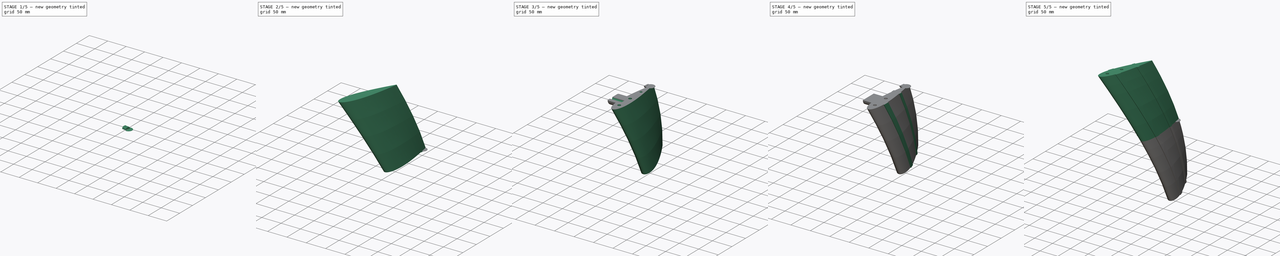
[diagram: build sequence overview — one tinted view per stage of 5, left to right]
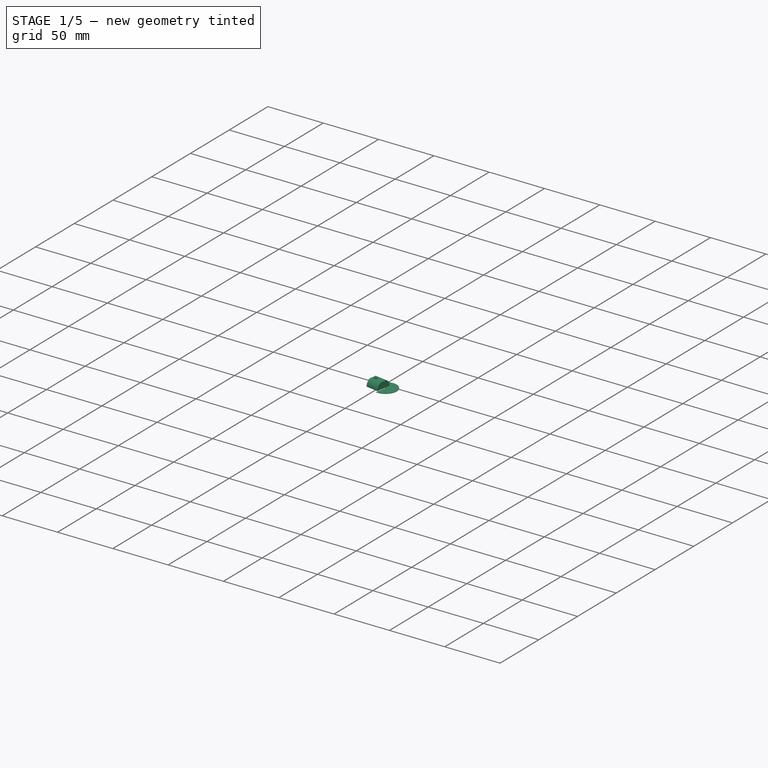
[diagram: stage 1 of 5 — iso view after this stage's code; geometry added in this stage tinted green]
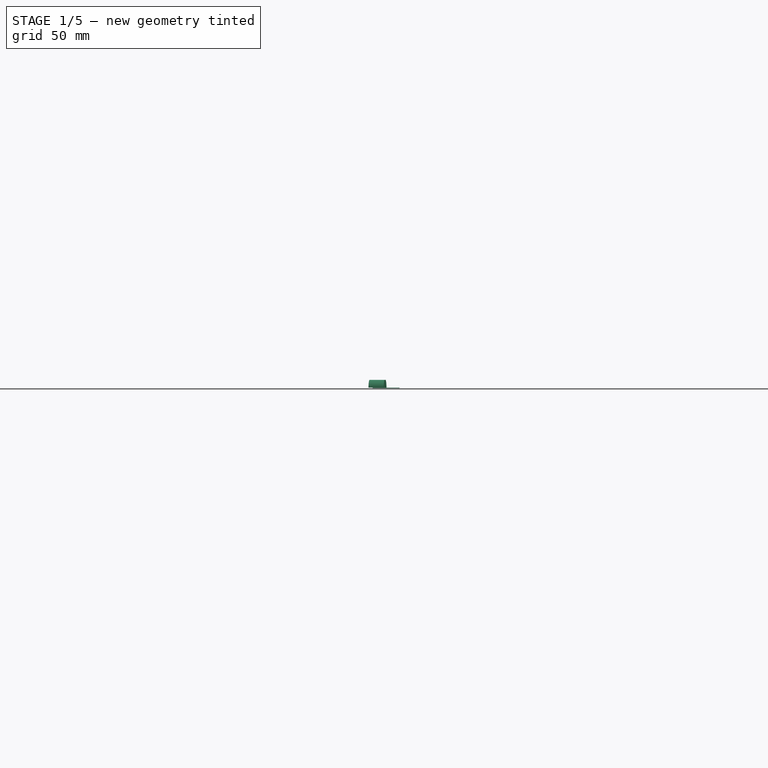
[diagram: stage 1 of 5 — front view after this stage's code; geometry added in this stage tinted green]
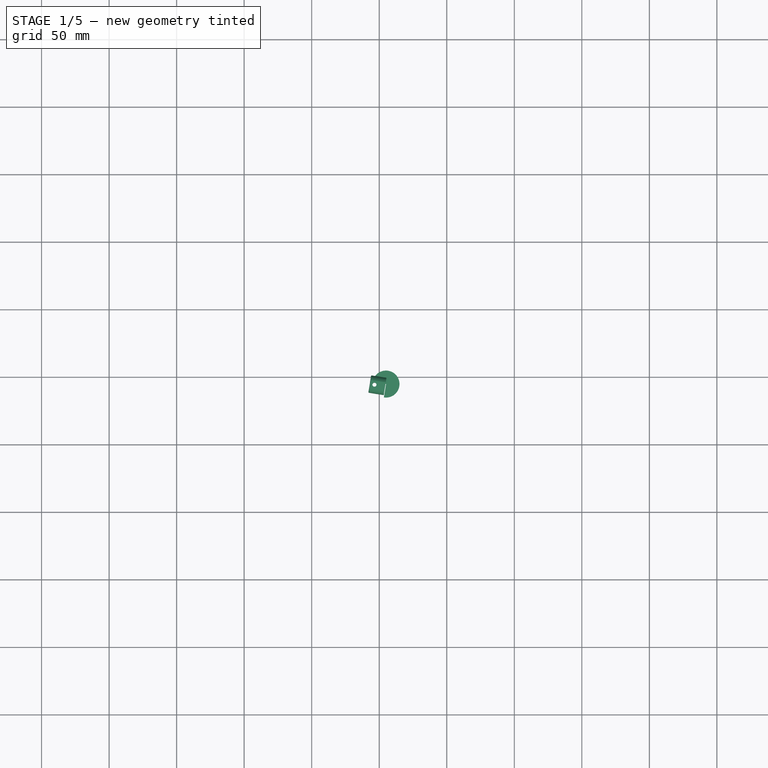
[diagram: stage 1 of 5 — top view after this stage's code; geometry added in this stage tinted green]
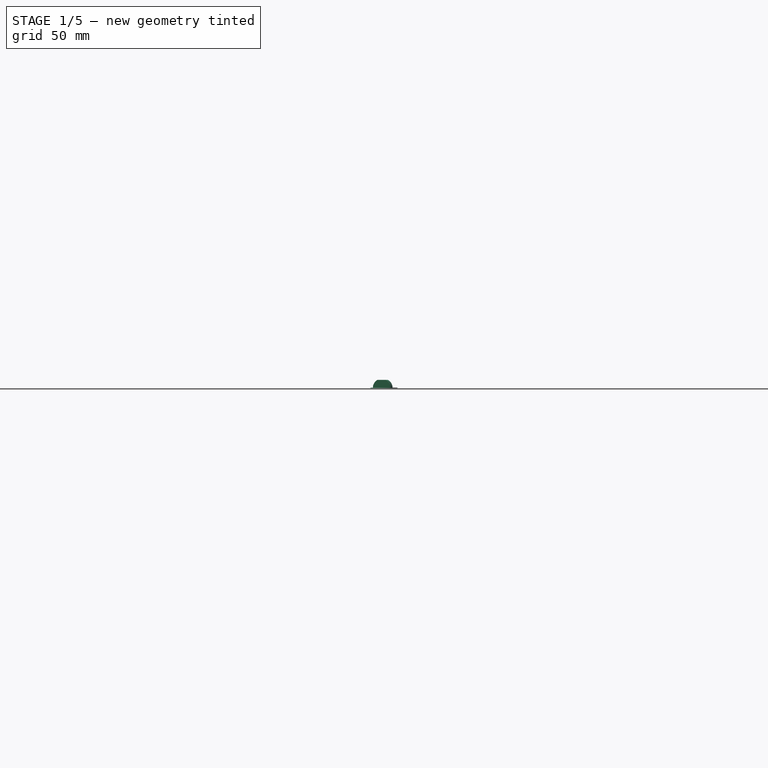
[diagram: stage 1 of 5 — right view after this stage's code; geometry added in this stage tinted green]
FCSTD DOCUMENT  (FreeCAD 0.17R13200 (Git))
Label: helixblade_mid_30
License: All rights reserved
LicenseURL: http://en.wikipedia.org/wiki/All_rights_reserved
objects: Part::FeaturePython×12, Sketcher::SketchObject×11, PartDesign::Body×9, PartDesign::Pocket×6, Part::MultiFuse×6, Part::Fillet×5, Part::Mirroring×4, PartDesign::FeatureBase×4, App::DocumentObjectGroup×3, PartDesign::Pad×3, Part::Part2DObjectPython×2, PartDesign::ShapeBinder×2, PartDesign::AdditivePipe×2, Part::Helix×1, Part::Sweep×1, App::Part×1
note: 79 computed .brp shape members not serialized (recipe doc carries the construction recipe); baked Part::Feature solids carry a one-line shape summary decoded from their .brp

FEATURE [Sketcher::SketchObject] Sketch009
  MapMode = 5
  Placement = pos=(0,0,0) rot=(0.57735,0.57735,0.57735;2.0944rad)
  Support = -> [YZ_Plane]
  sketch-geometry (4):
    g0: ArcOfCircle CenterX=0 CenterY=0 CenterZ=0 NormalX=0 NormalY=0 NormalZ=1 AngleXU=0 Radius=6.5 StartAngle=2.05052 EndAngle=3.14159
    g1: LineSegment StartX=-6.5 StartY=0 StartZ=0 EndX=6.5 EndY=0 EndZ=0
    g2: ArcOfCircle CenterX=0 CenterY=0 CenterZ=0 NormalX=0 NormalY=0 NormalZ=1 AngleXU=0 Radius=6.5 StartAngle=0 EndAngle=1.09107
    g3: LineSegment StartX=-3 StartY=5.76628 StartZ=0 EndX=3 EndY=5.76628 EndZ=0
  constraints (11):
    c: Coincident(g0,g-1)
    c: Coincident(g1,g0)
    c: Symmetric(g0,g1,g-2)
    c: Distance(g1) = 13
    c: Coincident(g2,g1)
    c: Coincident(g3,g0)
    c: Coincident(g3,g2)
    c: Horizontal(g3)
    c: Distance(g3) = 6
    c: Coincident(g2,g-1)
    c: PointOnObject(g1,g-1)
FEATURE [PartDesign::Pad] Pad001
  Length = 11.5
  Length2 = 100
  Placement = pos=(0,0,0) rot=(0.57735,0.57735,0.57735;2.0944rad)
  Profile = -> Sketch009
  Refine = true
  Type = 0
FEATURE [PartDesign::Pocket] Pocket003  label="clip w hole"
  BaseFeature = -> Pad001
  Length = 5
  Length2 = 100
  Midplane = true
  Placement = pos=(0,0,0) rot=(0.57735,0.57735,0.57735;2.0944rad)
  Profile = -> Sketch008
  Refine = true
  Type = 1
FEATURE [PartDesign::Body] Body  label="Clip"
  Group = -> [Sketch008,Sketch009,Pad001,Pocket003]
  Origin = -> BodyOrigin
  Tip = -> Pad001
FEATURE [Part::Fillet] Fillet008  label="clip"
  Base = -> Pocket003
  Edges = 3 edges r=0.6: [Edge3,Edge5,Edge13]
FEATURE [Part::FeaturePython] Clone015  label="clip001"  # Draft clone (typed FeaturePython)
  AttacherType = Attacher::AttachEngine3D
  Objects = -> [Fillet008]
  Placement = pos=(343,95,0) rot=(0,0,-1;0.15708rad)
  Scale = (1,1,1)
FEATURE [Part::FeaturePython] Clone016  label="clip002"  # Draft clone (typed FeaturePython)
  AttacherType = Attacher::AttachEngine3D
  Objects = -> [Clone015]
  Placement = pos=(343,95,0) rot=(0,0,-1;0.15708rad)
  Scale = (1,1,1)
FEATURE [PartDesign::Body] Body003  label="helixblade mirrored"
  Group = -> [Sketch011,Pocket005]
  Origin = -> Body003Origin
  Tip = -> Pocket005
FEATURE [Sketcher::SketchObject] Sketch012
  MapMode = 5
  Support = -> [XY_Plane008]
  sketch-geometry (3):
    g0: ArcOfCircle CenterX=0 CenterY=0 CenterZ=0 NormalX=0 NormalY=0 NormalZ=1 AngleXU=0 Radius=10 StartAngle=4.71239 EndAngle=9.42478
    g1: LineSegment StartX=-10 StartY=0 StartZ=0 EndX=0 EndY=0 EndZ=0
    g2: LineSegment StartX=0 StartY=0 StartZ=0 EndX=0 EndY=-10 EndZ=0
  constraints (8):
    c: Coincident(g0,g-1)
    c: Radius(g0) = 10
    c: Coincident(g1,g0)
    c: Coincident(g1,g-1)
    c: Horizontal(g1)
    c: Coincident(g2,g-1)
    c: Coincident(g2,g0)
    c: Vertical(g2)
FEATURE [PartDesign::Pad] Pad002  label="brim001"
  Length = 0.4
  Length2 = 100
  Profile = -> Sketch012
  Refine = true
  Type = 0
FEATURE [PartDesign::Body] Body004  label="brim"
  Group = -> [Sketch012,Pad002]
  Origin = -> Body004Origin
  Tip = -> Pad002
FEATURE [Part::FeaturePython] Clone017  label="brim002"  # Draft clone (typed FeaturePython)
  AttacherType = Attacher::AttachEngine3D
  Objects = -> [Body004]
  Placement = pos=(355,95,0) rot=(0,0,-1;0.15708rad)
  Scale = (1,1,1)
FEATURE [Part::FeaturePython] Clone018  label="brim003"  # Draft clone (typed FeaturePython)
  AttacherType = Attacher::AttachEngine3D
  Objects = -> [Clone017]
  Placement = pos=(355,95,-0.399) rot=(0,0,-1;0.15708rad)
  Scale = (1,1,1)
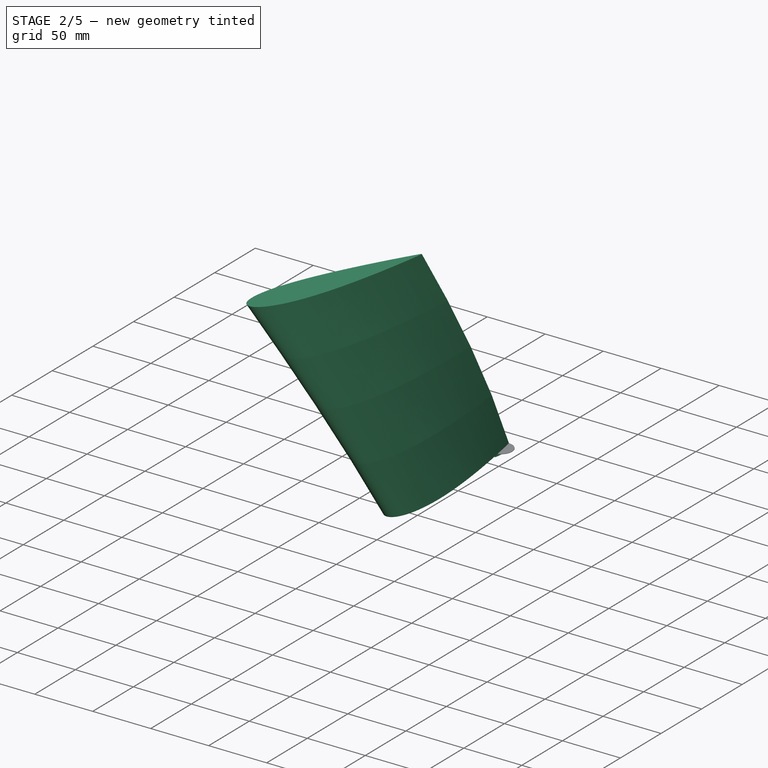
[diagram: stage 2 of 5 — iso view after this stage's code; geometry added in this stage tinted green]
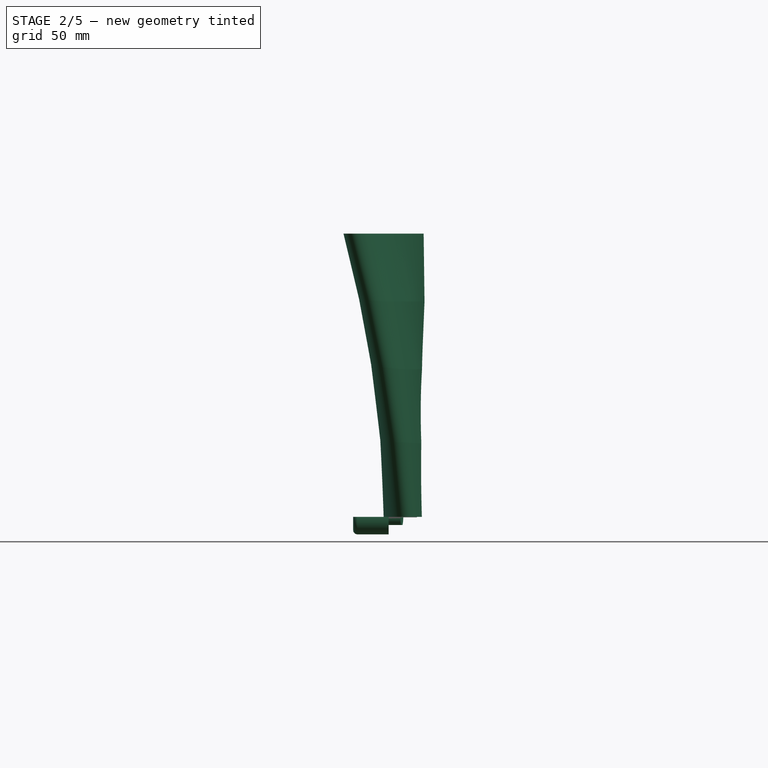
[diagram: stage 2 of 5 — front view after this stage's code; geometry added in this stage tinted green]
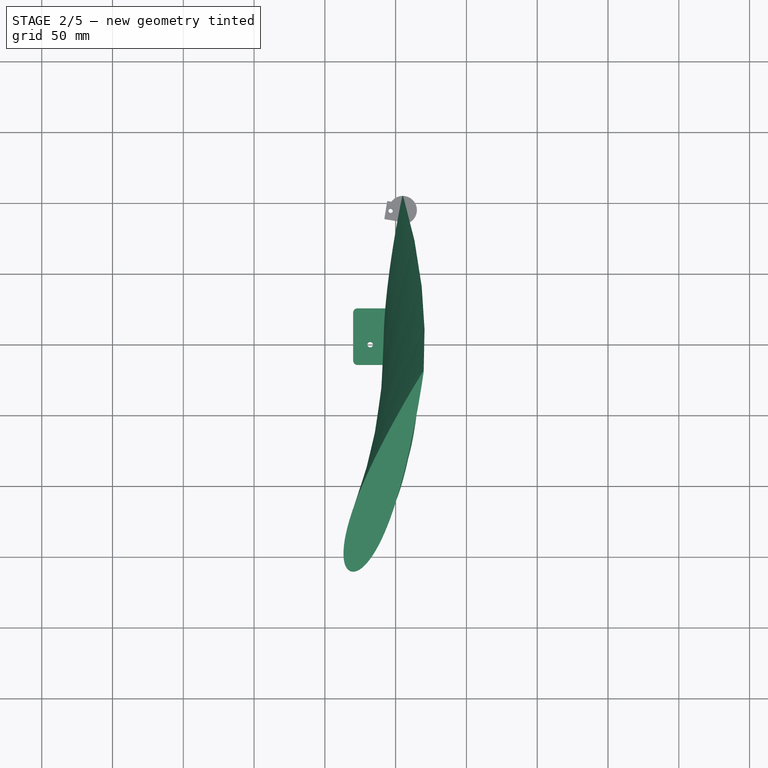
[diagram: stage 2 of 5 — top view after this stage's code; geometry added in this stage tinted green]
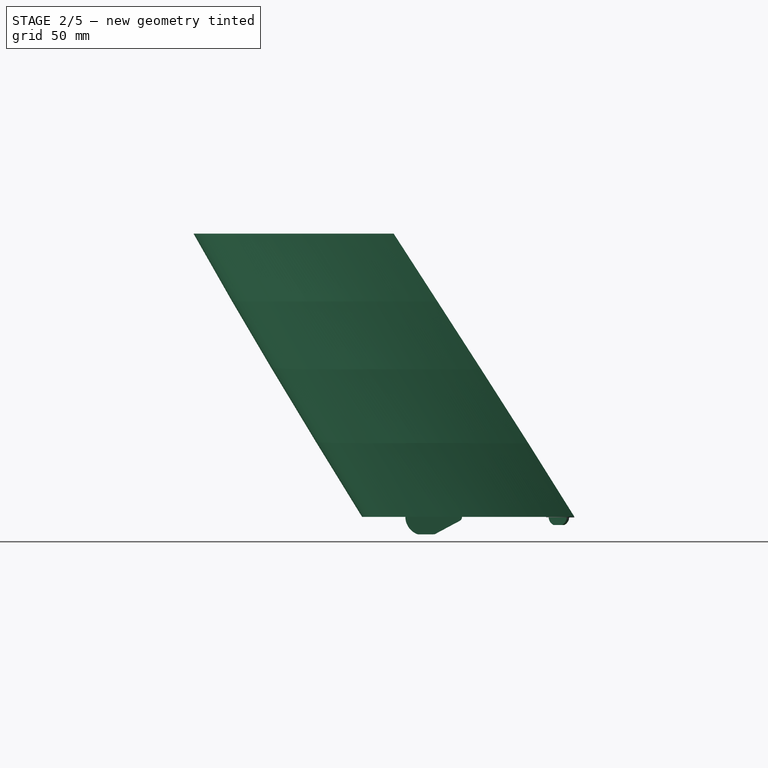
[diagram: stage 2 of 5 — right view after this stage's code; geometry added in this stage tinted green]
FEATURE [App::DocumentObjectGroup] naca0015
FEATURE [Part::Part2DObjectPython] DWire  # Draft 2D object (typed FeaturePython)
  ChamferSize = 0
  Closed = true
  End = (1,-0.001575,0)
  FilletRadius = 0
  Length = 2.05967
  MakeFace = true
  Points = (201) [(1,0.001575,0),(0.999753,0.001618,0),(0.999013,0.001748,0),(0.997781,0.001964,0),(0.996057,0.002265,0),(0.993844,0.002651,0),(0.991144,0.00312,0),+194 more]
  Start = (1,0.001575,0)
  Subdivisions = 0
FEATURE [Part::Part2DObjectPython] Clone2D  label="wing bottom"  # Draft 2D object (typed FeaturePython)
  Objects = -> [DWire]
  Placement = pos=(355,-45,0) rot=(0,0,1;1.5708rad)
  Scale = (150,180,1)
FEATURE [Part::Helix] Helix
  Angle = 0
  AttacherType = Attacher::AttachEngine3D
  Height = 200
  LocalCoord = 1
  Pitch = 3600
  Radius = 355
  Style = 1
FEATURE [Part::Sweep] Sweep  label="helix blade"
  Frenet = true
  Sections = -> [Clone2D]
  Solid = true
  Spine = -> Helix [Edge1]
  Transition = 1
FEATURE [Sketcher::SketchObject] Sketch002
  MapMode = 5
  Placement = pos=(0,0,0) rot=(0.57735,0.57735,0.57735;2.0944rad)
  Support = -> [YZ_Plane002]
  sketch-geometry (6):
    g0: LineSegment StartX=-5.77171 StartY=12.3629 StartZ=0 EndX=6.22829 EndY=12.3629 EndZ=0
    g1: LineSegment StartX=6.22829 StartY=12.3629 StartZ=0 EndX=25.5742 EndY=2 EndZ=0
    g2: LineSegment StartX=25.5742 StartY=2 StartZ=0 EndX=25.5742 EndY=0 EndZ=0
    g3: LineSegment StartX=-14.4258 StartY=0 StartZ=0 EndX=25.5742 EndY=0 EndZ=0
    g4: ArcOfCircle CenterX=-1.16916 CenterY=-0.0692517 CenterZ=0 NormalX=0 NormalY=0 NormalZ=1 AngleXU=0 Radius=13.2568 StartAngle=1.92536 EndAngle=3.13637
    g5: LineSegment [constr] StartX=0.22829 StartY=-0.00700161 StartZ=0 EndX=0.22829 EndY=11.7539 EndZ=0
  constraints (18):
    c: PointOnObject(g4,g-1)
    c: Horizontal(g0)
    c: PointOnObject(g1,g0)
    c: PointOnObject(g2,g1)
    c: PointOnObject(g2,g-1)
    c: PointOnObject(g3,g-1)
    c: Vertical(g2)
    c: Coincident(g3,g2)
    c: PointOnObject(g4,g-1)
    c: Coincident(g0,g4)
    c: Coincident(g1,g0)
    c: Coincident(g1,g2)
    c: DistanceY(g2,g2) = 2
    c: DistanceX(g3,g3) = 40
    c: Vertical(g5)
    c: Symmetric(g0,g0,g5)
    c: DistanceX(g0,g0) = 12
    c: Coincident(g4,g3)
FEATURE [PartDesign::Pad] Pad  label="mount"
  Length = 25
  Length2 = 100
  Placement = pos=(0,0,0) rot=(0.57735,0.57735,0.57735;2.0944rad)
  Profile = -> Sketch002
  Refine = true
  Type = 0
FEATURE [Sketcher::SketchObject] Sketch003  label="screwhole"
  ExternalGeometry = -> [Pad]
  MapMode = 5
  Placement = pos=(0,0,12.3629) rot=(0,0,-1;1.5708rad)
  Support = -> [Pad]
  sketch-geometry (1):
    g0: Circle CenterX=0 CenterY=12 CenterZ=0 NormalX=0 NormalY=0 NormalZ=1 AngleXU=0 Radius=2
  constraints (3):
    c: Radius(g0) = 2
    c: DistanceY(g-1,g0) = 12
    c: PointOnObject(g0,g-2)
FEATURE [PartDesign::Pocket] Pocket002  label="mount001"
  BaseFeature = -> Pad
  Length = 5
  Length2 = 100
  Placement = pos=(0,0,0) rot=(0.57735,0.57735,0.57735;2.0944rad)
  Profile = -> Sketch003
  Refine = true
  Type = 1
FEATURE [Part::Fillet] Fillet
  Base = -> Pocket002
  Edges = 3 edges r=3: [Edge1,Edge4,Edge15]
FEATURE [Part::Fillet] Fillet006  label="mount002"
  Base = -> Fillet
  Edges = 3 edges r=3: [Edge1,Edge8,Edge9]
FEATURE [Part::FeaturePython] Clone011  label="mount003"  # Draft clone (typed FeaturePython)
  AttacherType = Attacher::AttachEngine3D
  Objects = -> [Fillet006]
  Placement = pos=(320,0,0) rot=(0,0,1;0rad)
  Scale = (1,1,1)
FEATURE [Part::FeaturePython] Clone012  label="mount004"  # Draft clone (typed FeaturePython)
  AttacherType = Attacher::AttachEngine3D
  Objects = -> [Clone011]
  Placement = pos=(320,0,0) rot=(0,0,1;0rad)
  Scale = (1,1,1)
FEATURE [Part::Mirroring] Part__Mirroring002  label="mount004 (Mirror #3)"
  Base = (332.5,5.57423,0)
  Normal = (0,0,1)
  Source = -> Clone012
FEATURE [Part::Mirroring] Part__Mirroring  label="clip002 (Mirror #2)"
  Base = (0,0,0)
  Normal = (0,0,1)
  Placement = pos=(0,0,-0.001) rot=(0,0,1;0rad)
  Source = -> Clone016
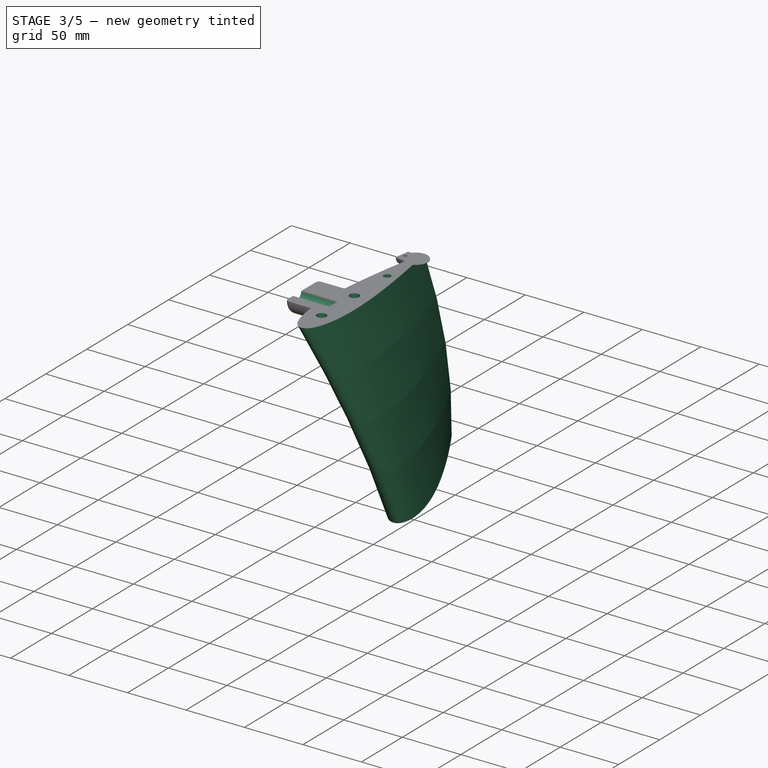
[diagram: stage 3 of 5 — iso view after this stage's code; geometry added in this stage tinted green]
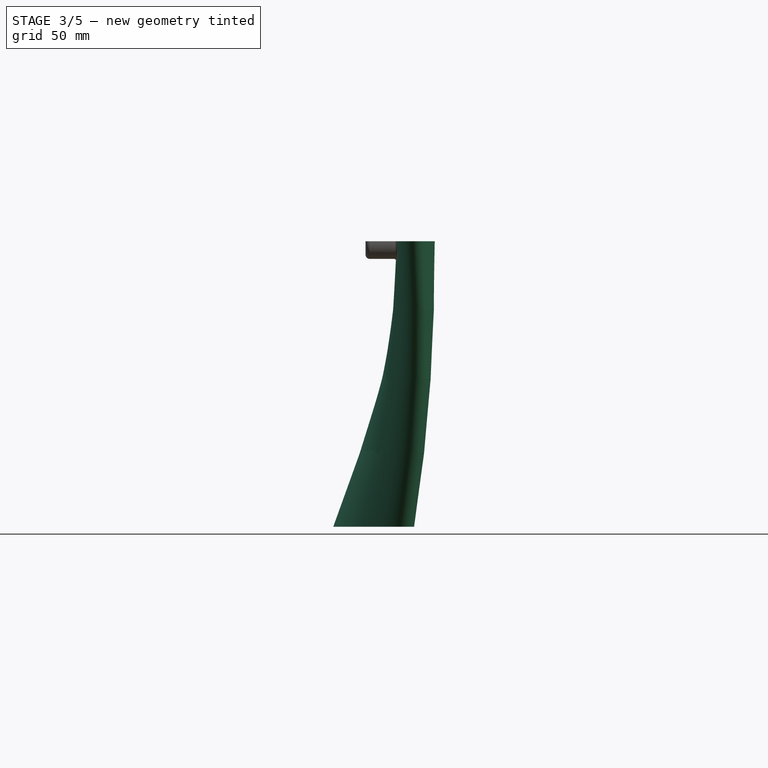
[diagram: stage 3 of 5 — front view after this stage's code; geometry added in this stage tinted green]
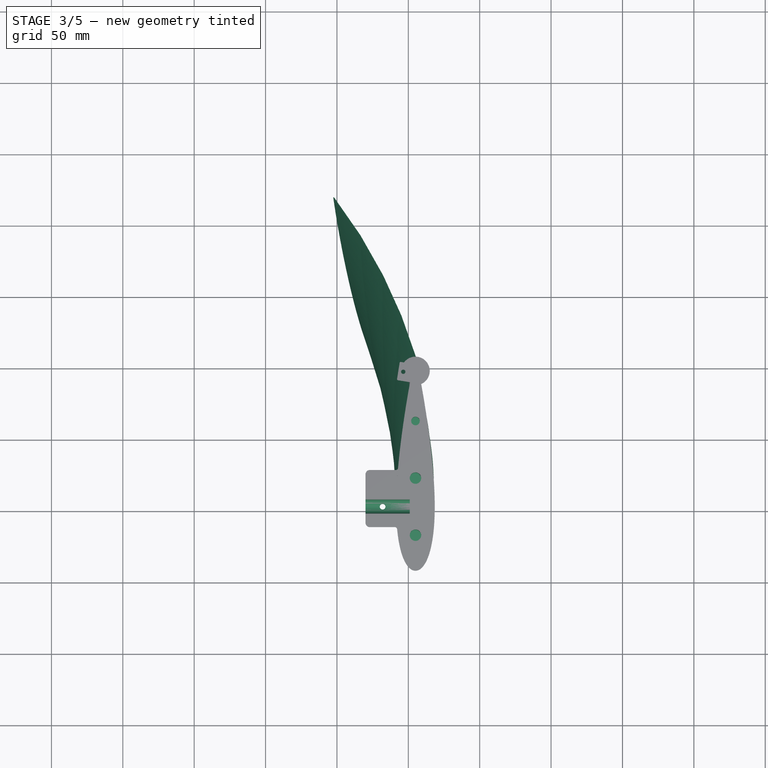
[diagram: stage 3 of 5 — top view after this stage's code; geometry added in this stage tinted green]
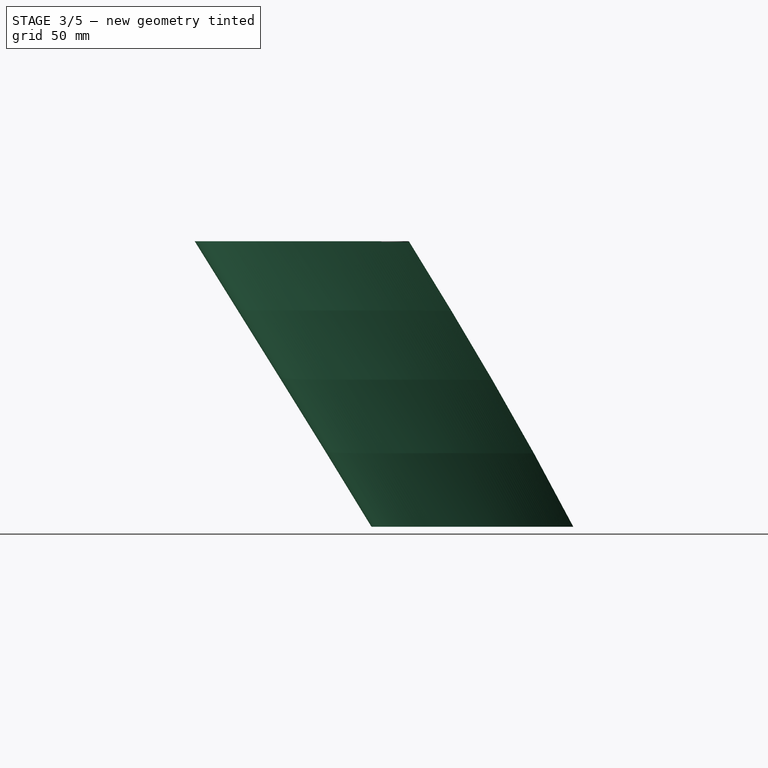
[diagram: stage 3 of 5 — right view after this stage's code; geometry added in this stage tinted green]
FEATURE [Part::FeaturePython] Clone  label="Clone of helix blade"  # Draft clone (typed FeaturePython)
  Objects = -> [Sweep]
  Scale = (1,1,1)
FEATURE [Sketcher::SketchObject] Sketch  label="holes"
  MapMode = 5
  Placement = pos=(0,0,0) rot=(1,0,0;3.14159rad)
  Support = -> [Clone]
  sketch-geometry (4):
    g0: LineSegment [constr] StartX=355.081 StartY=45.0981 StartZ=0 EndX=355.081 EndY=-104.902 EndZ=0
    g1: Circle CenterX=355.081 CenterY=20.0981 CenterZ=0 NormalX=0 NormalY=0 NormalZ=1 AngleXU=0 Radius=4
    g2: Circle CenterX=355.081 CenterY=-19.9019 CenterZ=0 NormalX=0 NormalY=0 NormalZ=1 AngleXU=0 Radius=4
    g3: Circle CenterX=355.081 CenterY=-59.9019 CenterZ=0 NormalX=0 NormalY=0 NormalZ=1 AngleXU=0 Radius=3
  constraints (11):
    c: PointOnObject(g1,g0)
    c: PointOnObject(g3,g0)
    c: Radius(g1) = 4
    c: Radius(g2) = 4
    c: Distance(g1,g2) = 40
    c: Distance(g2,g3) = 40
    c: Distance(g0,g1) = 25
    c: PointOnObject(g2,g0)
    c: Radius(g3) = 3
    c: Distance(g0) = 150
    c: Vertical(g0)
FEATURE [PartDesign::Pocket] Pocket  label="helix blade w holes"
  Length = 12
  Length2 = 100
  Profile = -> Sketch
  Refine = true
  Type = 0
FEATURE [Sketcher::SketchObject] Sketch001  label="holes001"
  MapMode = 5
  Placement = pos=(0.000240718,-8.76143e-05,200) rot=(0.342021,0.939692,0;1e-06rad)
  Support = -> [Pocket]
  sketch-geometry (4):
    g0: LineSegment [constr] StartX=318.189 StartY=-163.78 StartZ=0 EndX=369.492 EndY=-22.8263 EndZ=0
    g1: Circle CenterX=326.739 CenterY=-140.288 CenterZ=0 NormalX=0 NormalY=0 NormalZ=1 AngleXU=0 Radius=4
    g2: Circle CenterX=340.42 CenterY=-102.7 CenterZ=0 NormalX=0 NormalY=0 NormalZ=1 AngleXU=0 Radius=4
    g3: Circle CenterX=354.101 CenterY=-65.1125 CenterZ=0 NormalX=0 NormalY=0 NormalZ=1 AngleXU=0 Radius=3
  constraints (11):
    c: PointOnObject(g1,g0)
    c: PointOnObject(g3,g0)
    c: Radius(g1) = 4
    c: Radius(g2) = 4
    c: Distance(g1,g2) = 40
    c: Distance(g2,g3) = 40
    c: Distance(g0,g1) = 25
    c: PointOnObject(g2,g0)
    c: Radius(g3) = 3
    c: Distance(g0) = 150
    c: Angle(g-1,g0) = 1.22173
FEATURE [PartDesign::Pocket] Pocket001  label="helix blade w upper holes"
  BaseFeature = -> Pocket
  Length = 12
  Length2 = 100
  Profile = -> Sketch001
  Refine = true
  Type = 0
FEATURE [PartDesign::Body] Pocket001Body  label="Blade"
  BaseFeature = -> Sweep
  Group = -> [Sketch,Pocket,Sketch001,Pocket001]
  Origin = -> Pocket001BodyOrigin
  Tip = -> Pocket001
FEATURE [PartDesign::Body] Pocket002Body  label="Mount"
  Group = -> [Sketch002,Pad,Sketch003,Pocket002]
  Origin = -> Pocket002BodyOrigin
  Tip = -> Pad
FEATURE [PartDesign::Body] Pocket003Body  label="Helix Blade001"
  Origin = -> Pocket003BodyOrigin
FEATURE [App::Part] Part  label="Helix Blade"
  Group = -> [Pocket001Body,Pocket003Body]
  License = CC BY 3.0
  LicenseURL = http://creativecommons.org/licenses/by/3.0/
  Origin = -> PartOrigin
FEATURE [Part::FeaturePython] Clone008  label="helix blade w upper holes001"  # Draft clone (typed FeaturePython)
  AttacherType = Attacher::AttachEngine3D
  Objects = -> [Pocket001]
  Placement = pos=(0,0,-200) rot=(0,0,1;0.349066rad)
  Scale = (1,1,1)
FEATURE [Part::MultiFuse] Fusion001  label="blade mirrored"
  Refine = true
  Shapes = -> [Clone008,Part__Mirroring002,Part__Mirroring]
FEATURE [Part::Fillet] Fillet010  label="blade mirrored001"
  Base = -> Fusion001
  Edges = 1 edges r=1.6: [Edge560]
FEATURE [Sketcher::SketchObject] Sketch011
  MapMode = 5
  Placement = pos=(320,0,0) rot=(0.57735,-0.57735,-0.57735;2.0944rad)
  Support = -> [Fillet010]
  sketch-geometry (1):
    g0: Circle CenterX=0 CenterY=0 CenterZ=0 NormalX=0 NormalY=0 NormalZ=1 AngleXU=0 Radius=5
  constraints (3):
    c: PointOnObject(g0,g-1)
    c: Radius(g0) = 5
    c: Coincident(g0,g-1)
FEATURE [PartDesign::Pocket] Pocket005
  Length = 31
  Length2 = 100
  Profile = -> Sketch011
  Refine = true
  Type = 0
FEATURE [App::DocumentObjectGroup] Group001  label="modifier mirrored"
  Group = -> [Clone025,Clone024,Fusion005]
FEATURE [Part::MultiFuse] Fusion006  label="helix blade mirrored w brim"
  Refine = true
  Shapes = -> [Clone018,Body003]
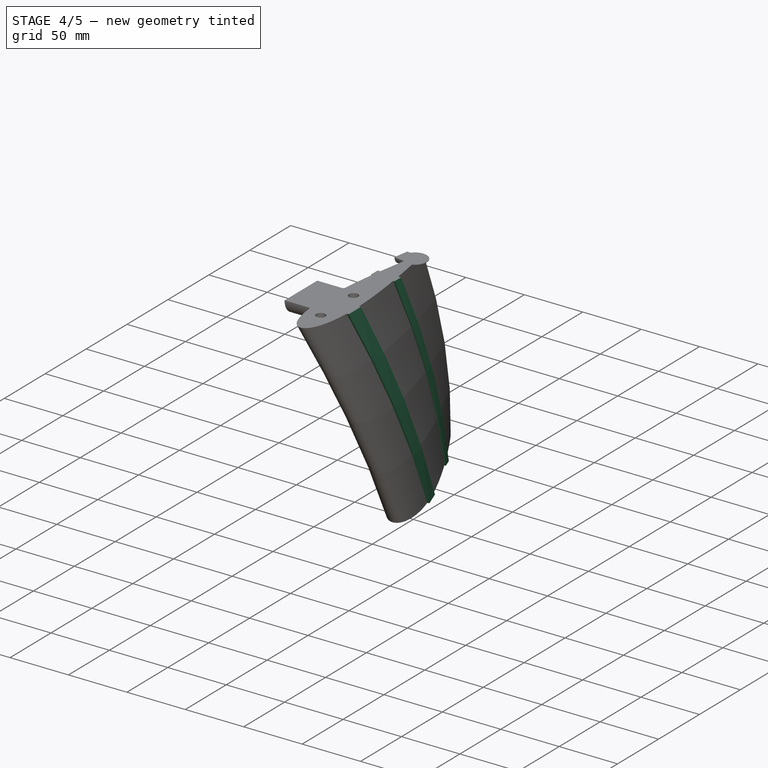
[diagram: stage 4 of 5 — iso view after this stage's code; geometry added in this stage tinted green]
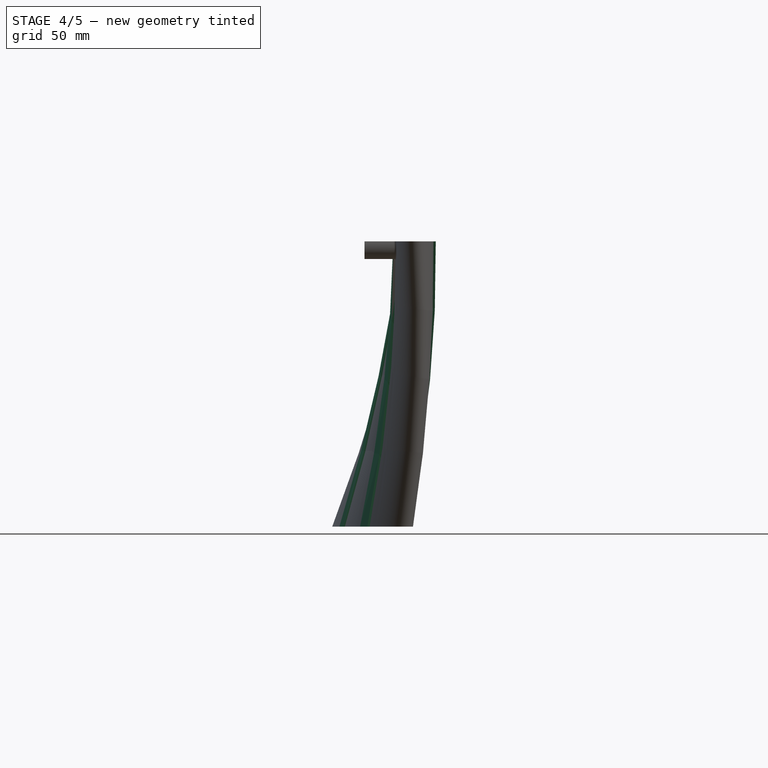
[diagram: stage 4 of 5 — front view after this stage's code; geometry added in this stage tinted green]
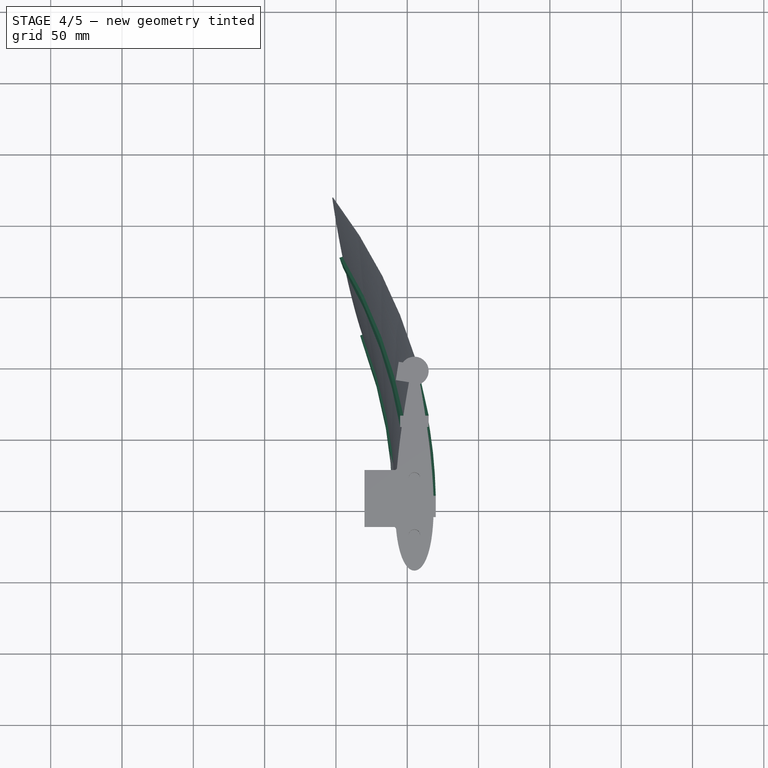
[diagram: stage 4 of 5 — top view after this stage's code; geometry added in this stage tinted green]
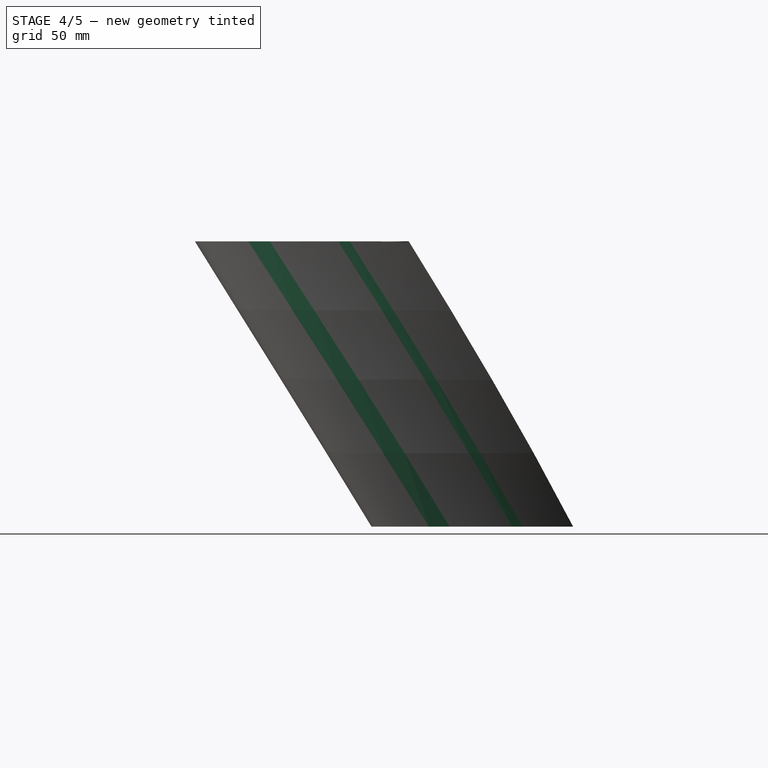
[diagram: stage 4 of 5 — right view after this stage's code; geometry added in this stage tinted green]
FEATURE [Part::FeaturePython] Clone019  label="Helix001"  # Draft clone (typed FeaturePython)
  AttacherType = Attacher::AttachEngine3D
  Fuse = false
  Objects = -> [Helix]
  Scale = (1,1,1)
FEATURE [Sketcher::SketchObject] Sketch013
  AttachmentOffset = pos=(355,0,0) rot=(0,0,1;0rad)
  MapMode = 5
  Placement = pos=(355,0,0) rot=(0,0,1;0rad)
  Support = -> [XY_Plane009]
  sketch-geometry (4):
    g0: LineSegment StartX=15 StartY=7.5 StartZ=0 EndX=-15 EndY=7.5 EndZ=0
    g1: LineSegment StartX=-15 StartY=7.5 StartZ=0 EndX=-15 EndY=-7.5 EndZ=0
    g2: LineSegment StartX=-15 StartY=-7.5 StartZ=0 EndX=15 EndY=-7.5 EndZ=0
    g3: LineSegment StartX=15 StartY=-7.5 StartZ=0 EndX=15 EndY=7.5 EndZ=0
  constraints (12):
    c: Coincident(g0,g1)
    c: Coincident(g1,g2)
    c: Coincident(g2,g3)
    c: Coincident(g3,g0)
    c: Horizontal(g0)
    c: Horizontal(g2)
    c: Vertical(g1)
    c: Vertical(g3)
    c: Symmetric(g1,g2,g-2)
    c: DistanceY(g1,g1) = 15
    c: DistanceX(g2,g2) = 30
    c: Symmetric(g0,g2,g-1)
FEATURE [PartDesign::ShapeBinder] CopyHelix
FEATURE [PartDesign::AdditivePipe] AdditivePipe
  AuxilleryCurvelinear = true
  AuxillerySpineTangent = false
  Binormal = (0,0,0)
  Mode = 2
  Profile = -> Sketch013
  Refine = true
  Spine = -> CopyHelix
  SpineTangent = false
  Transformation = 0
  Transition = 0
FEATURE [Sketcher::SketchObject] Sketch014
  MapMode = 5
  Support = -> [XY_Plane010]
  sketch-geometry (4):
    g0: LineSegment StartX=345.026 StartY=63.658 StartZ=0 EndX=365.026 EndY=63.658 EndZ=0
    g1: LineSegment StartX=365.026 StartY=63.658 StartZ=0 EndX=365.026 EndY=55.658 EndZ=0
    g2: LineSegment StartX=365.026 StartY=55.658 StartZ=0 EndX=345.026 EndY=55.658 EndZ=0
    g3: LineSegment StartX=345.026 StartY=55.658 StartZ=0 EndX=345.026 EndY=63.658 EndZ=0
  constraints (10):
    c: Coincident(g0,g1)
    c: Coincident(g1,g2)
    c: Coincident(g2,g3)
    c: Coincident(g3,g0)
    c: Horizontal(g0)
    c: Horizontal(g2)
    c: Vertical(g1)
    c: Vertical(g3)
    c: DistanceX(g2,g2) = 20
    c: DistanceY(g1,g1) = 8
FEATURE [PartDesign::ShapeBinder] CopyCopyHelix
FEATURE [PartDesign::AdditivePipe] AdditivePipe001
  AuxilleryCurvelinear = true
  AuxillerySpineTangent = false
  Binormal = (0,0,0)
  Mode = 2
  Profile = -> Sketch014
  Refine = true
  Spine = -> CopyCopyHelix
  SpineTangent = false
  Transformation = 0
  Transition = 0
FEATURE [App::DocumentObjectGroup] Group  label="modifier001"
  Group = -> [Clone019,Fusion004]
FEATURE [PartDesign::FeatureBase] Clone022  label="main pillar001"
  BaseFeature = -> Body005
  Placement = pos=(0,0,-200) rot=(0,0,1;0.349066rad)
FEATURE [PartDesign::FeatureBase] Clone023  label="second pillar001"
  BaseFeature = -> Body006
  Placement = pos=(0,0,-200) rot=(0,0,1;0.349066rad)
FEATURE [PartDesign::FeatureBase] Clone024  label="mount005"
  BaseFeature = -> Pocket002Body
  Placement = pos=(320,0,0) rot=(0,0,1;0rad)
FEATURE [PartDesign::FeatureBase] Clone025  label="clip003"
  BaseFeature = -> Body
  Placement = pos=(343,95,0) rot=(0,0,-1;0.15708rad)
FEATURE [Part::Mirroring] mirror  label="Mirror of mount005"
  Base = (320,-13.2402,0)
  Normal = (0,0,0.821102)
  Source = -> Clone024
FEATURE [Part::Mirroring] mirror001  label="Mirror of clip003"
  Base = (341.983,88.58,0)
  Normal = (0,0,0.760351)
  Source = -> Clone025
FEATURE [Part::MultiFuse] Fusion005  label="modifier mirrored001"
  Refine = true
  Shapes = -> [Clone022,Clone023,mirror,mirror001]
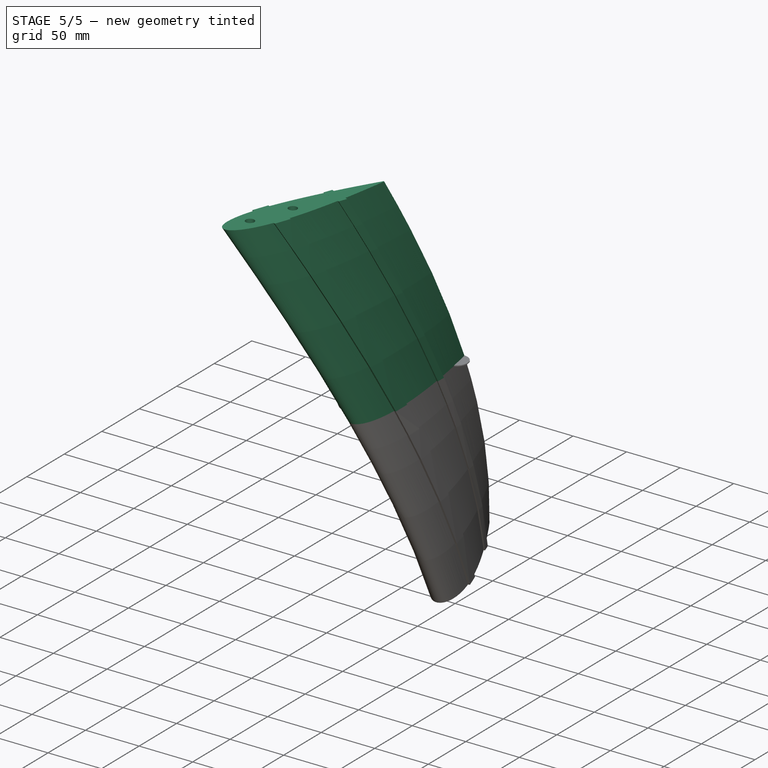
[diagram: stage 5 of 5 — iso view after this stage's code; geometry added in this stage tinted green]
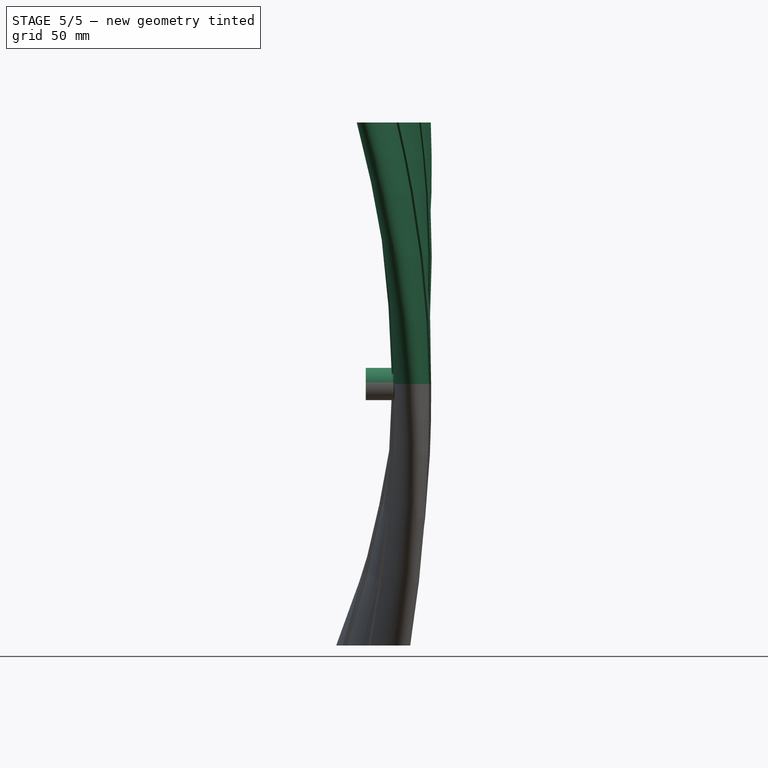
[diagram: stage 5 of 5 — front view after this stage's code; geometry added in this stage tinted green]
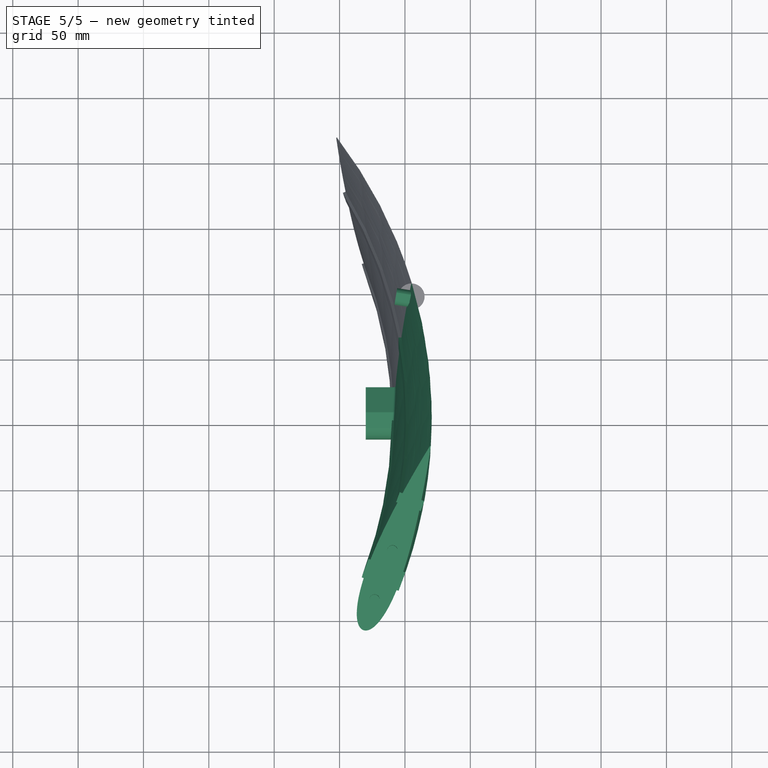
[diagram: stage 5 of 5 — top view after this stage's code; geometry added in this stage tinted green]
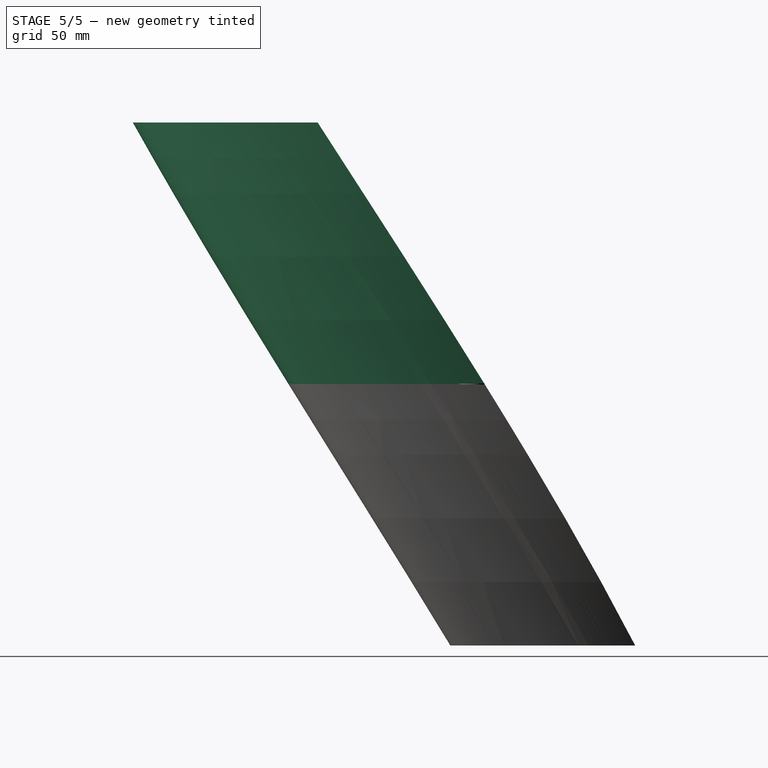
[diagram: stage 5 of 5 — right view after this stage's code; geometry added in this stage tinted green]
FEATURE [Sketcher::SketchObject] Sketch008
  MapMode = 5
  Placement = pos=(0,0,3) rot=(0,0,-1;1.5708rad)
  sketch-geometry (1):
    g0: Circle CenterX=0 CenterY=3.5 CenterZ=0 NormalX=0 NormalY=0 NormalZ=1 AngleXU=0 Radius=1.5
  constraints (3):
    c: Radius(g0) = 1.5
    c: DistanceY(g-1,g0) = 3.5
    c: PointOnObject(g0,g-2)
FEATURE [Part::FeaturePython] Clone001  label="Clone of helix blade w upper holes"  # Draft clone (typed FeaturePython)
  Objects = -> [Pocket001Body]
  Scale = (1,1,1)
FEATURE [Part::MultiFuse] Fusion  label="blade w mounts"
  Refine = true
  Shapes = -> [Clone015,Clone001,Clone011]
FEATURE [Part::Fillet] Fillet009  label="blade"
  Base = -> Fusion
  Edges = 6 edges r=1.6: [Edge592,Edge596,Edge598,Edge614,Edge616,Edge618]
FEATURE [Sketcher::SketchObject] Sketch010
  MapMode = 5
  Placement = pos=(320,0,0) rot=(0.57735,-0.57735,-0.57735;2.0944rad)
  Support = -> [Fillet009]
  sketch-geometry (1):
    g0: Circle CenterX=0 CenterY=0 CenterZ=0 NormalX=0 NormalY=0 NormalZ=1 AngleXU=0 Radius=5
  constraints (3):
    c: Radius(g0) = 5
    c: PointOnObject(g0,g-1)
    c: Coincident(g-1,g0)
FEATURE [PartDesign::Pocket] Pocket004
  Length = 31
  Length2 = 100
  Profile = -> Sketch010
  Refine = true
  Type = 0
FEATURE [PartDesign::Body] Body002  label="helix blade001"
  Group = -> [Sketch010,Pocket004]
  Origin = -> Body002Origin
  Tip = -> Pocket004
FEATURE [Part::MultiFuse] Fusion002  label="helix blade w brim"
  Refine = true
  Shapes = -> [Body002,Clone017]
FEATURE [PartDesign::Body] Body005  label="main pillar"
  Group = -> [Sketch013,AdditivePipe,CopyHelix]
  Origin = -> Origin
  Tip = -> AdditivePipe
FEATURE [Part::FeaturePython] Clone020  label="Mount001"  # Draft clone (typed FeaturePython)
  AttacherType = Attacher::AttachEngine3D
  Fuse = false
  Objects = -> [Pocket002Body]
  Placement = pos=(320,0,0) rot=(0,0,1;0rad)
  Scale = (1,1,1)
FEATURE [Part::FeaturePython] Clone021  label="Clip001"  # Draft clone (typed FeaturePython)
  AttacherType = Attacher::AttachEngine3D
  Fuse = false
  Objects = -> [Body]
  Placement = pos=(343,95,0) rot=(0,0,-1;0.15708rad)
  Scale = (1,1,1)
FEATURE [PartDesign::Body] Body006  label="second pillar"
  Group = -> [Sketch014,AdditivePipe001,CopyCopyHelix]
  Origin = -> Origin001
  Tip = -> AdditivePipe001
FEATURE [Part::MultiFuse] Fusion004  label="modifier"
  Refine = true
  Shapes = -> [Body005,Body006,Clone021,Clone020]
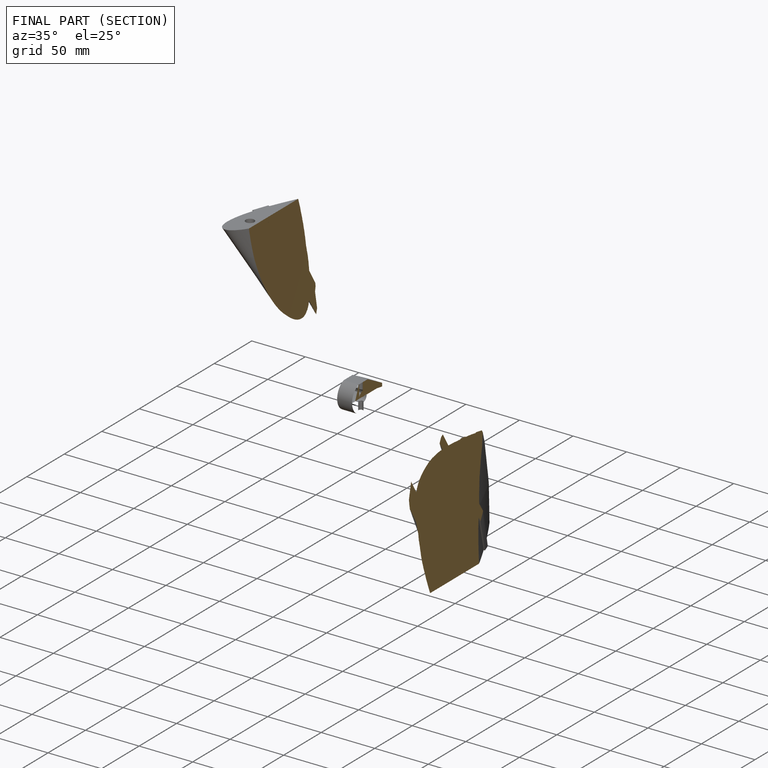
[diagram: finished part — half-section view (interior)]
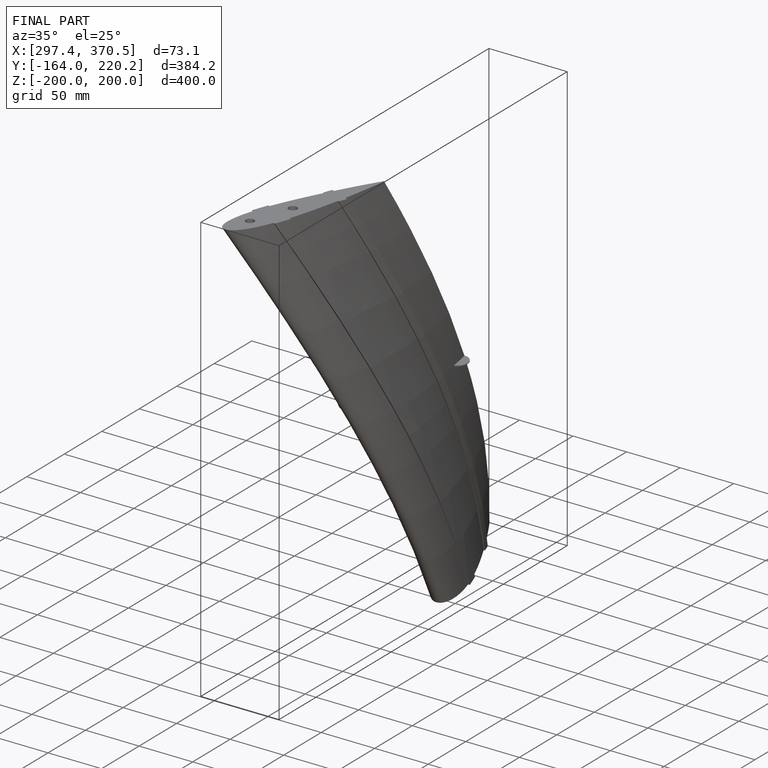
[diagram: finished part — iso view with bounding-box wireframe]
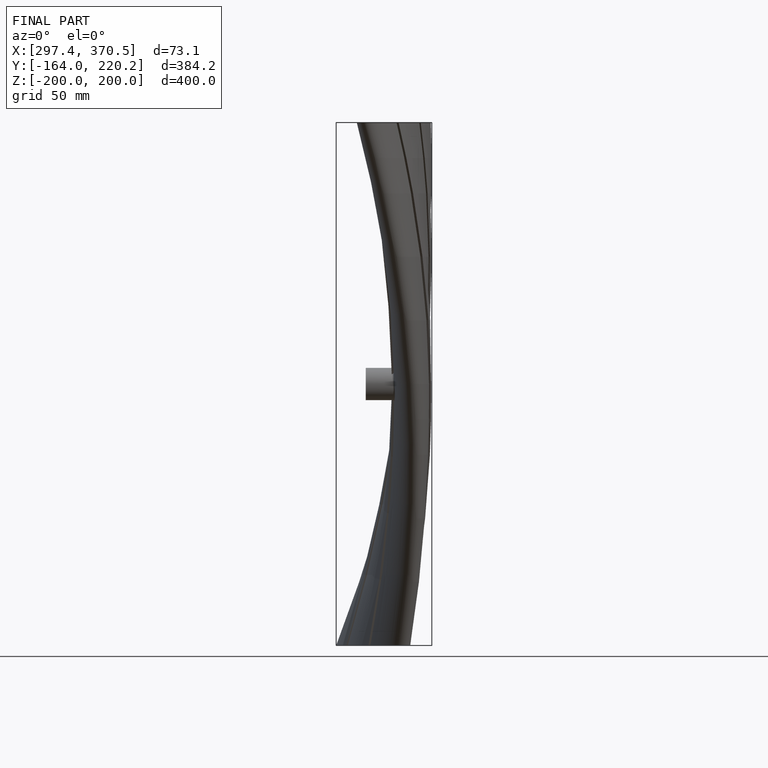
[diagram: finished part — front view with bounding-box wireframe]
